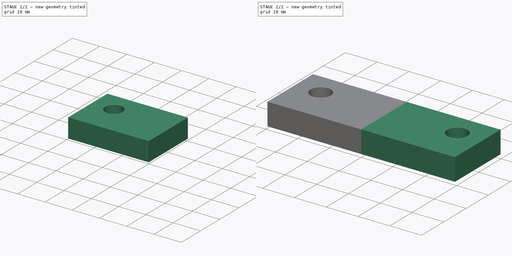
[diagram: build sequence overview — one tinted view per stage of 2, left to right]
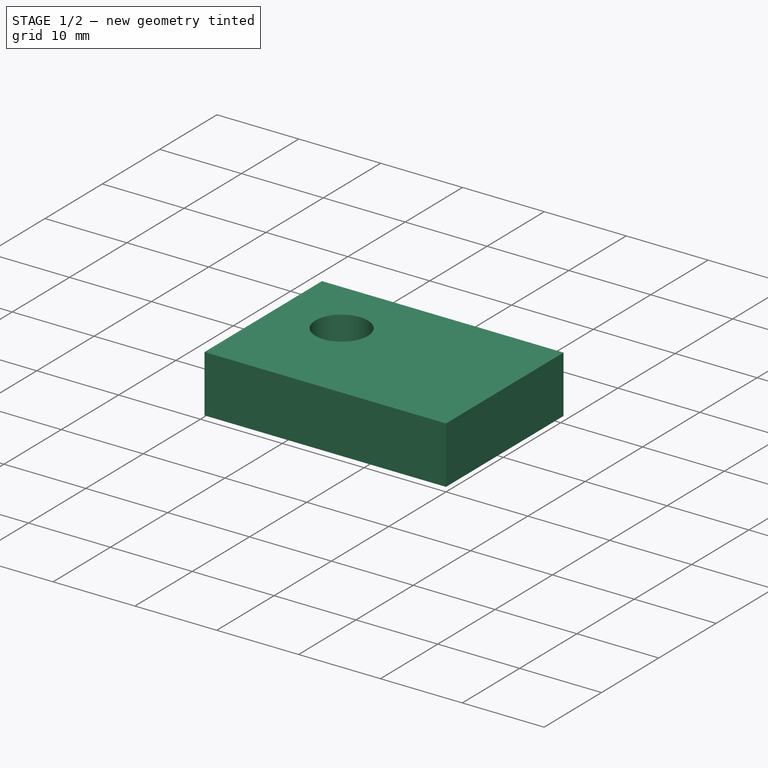
[diagram: stage 1 of 2 — iso view after this stage's code; geometry added in this stage tinted green]
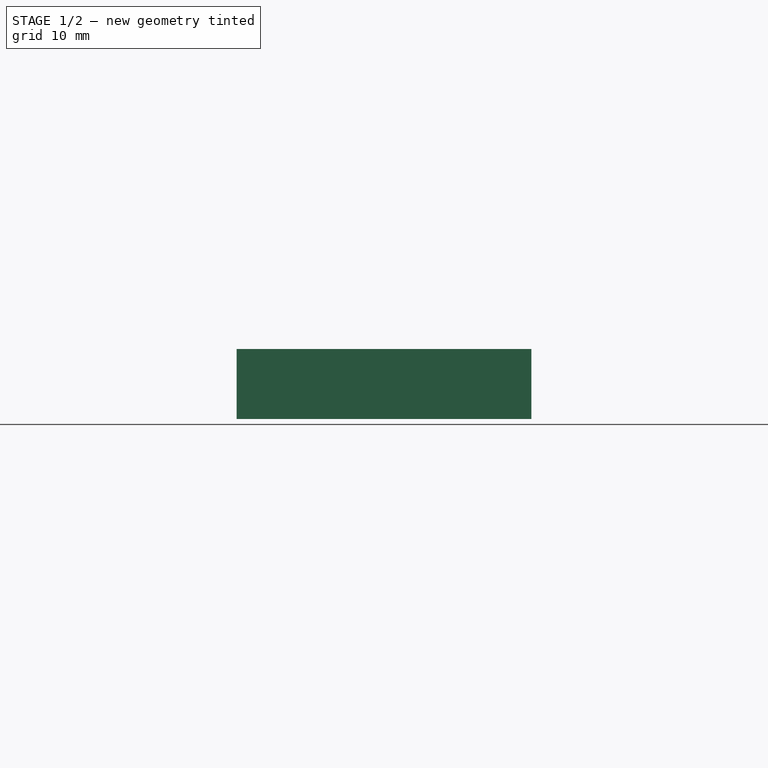
[diagram: stage 1 of 2 — front view after this stage's code; geometry added in this stage tinted green]
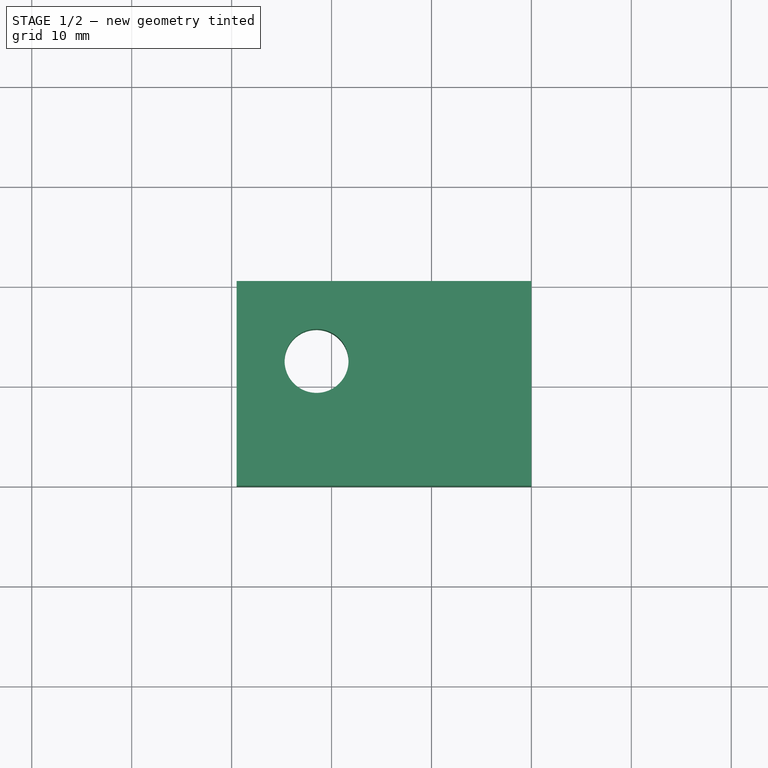
[diagram: stage 1 of 2 — top view after this stage's code; geometry added in this stage tinted green]
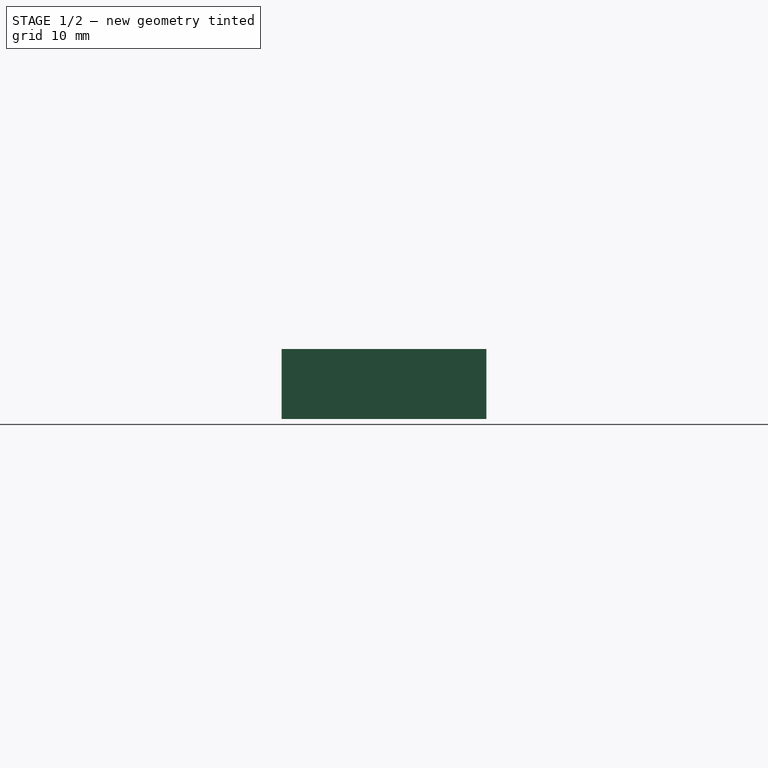
[diagram: stage 1 of 2 — right view after this stage's code; geometry added in this stage tinted green]
FCSTD DOCUMENT  (FreeCAD 0.19R24291 (Git))
Label: Упор
License: All rights reserved
LicenseURL: http://en.wikipedia.org/wiki/All_rights_reserved
objects: Sketcher::SketchObject×1, PartDesign::Pad×1, PartDesign::Mirrored×1, PartDesign::Body×1
note: 5 computed .brp shape members not serialized (recipe doc carries the construction recipe); baked Part::Feature solids carry a one-line shape summary decoded from their .brp

FEATURE [Sketcher::SketchObject] Sketch
  FullyConstrained = true
  MapMode = 5
  Support = -> [XY_Plane]
  sketch-geometry (5):
    g0: Circle CenterX=-21.5 CenterY=12.5 CenterZ=0 NormalX=0 NormalY=0 NormalZ=1 AngleXU=0 Radius=3.2
    g1: LineSegment StartX=0 StartY=0 StartZ=0 EndX=-29.5 EndY=0 EndZ=0
    g2: LineSegment StartX=-29.5 StartY=0 StartZ=0 EndX=-29.5 EndY=20.5 EndZ=0
    g3: LineSegment StartX=-29.5 StartY=20.5 StartZ=0 EndX=0 EndY=20.5 EndZ=0
    g4: LineSegment StartX=0 StartY=20.5 StartZ=0 EndX=0 EndY=0 EndZ=0
  constraints (14):
    c: Distance(g0,g-1) = 12.5
    c: Diameter(g0) = 6.4
    c: Distance(g0,g-2) = 21.5
    c: Coincident(g1,g2)
    c: Coincident(g2,g3)
    c: Coincident(g3,g4)
    c: Coincident(g4,g1)
    c: Horizontal(g1)
    c: Horizontal(g3)
    c: Vertical(g2)
    c: Vertical(g4)
    c: Coincident(g1,g-1)
    c: Distance(g0,g2) = 8
    c: Distance(g0,g3) = 8
FEATURE [PartDesign::Pad] Pad
  Direction = (1,1,1)
  Length = 7
  Length2 = 100
  Profile = -> Sketch
  Type = 0
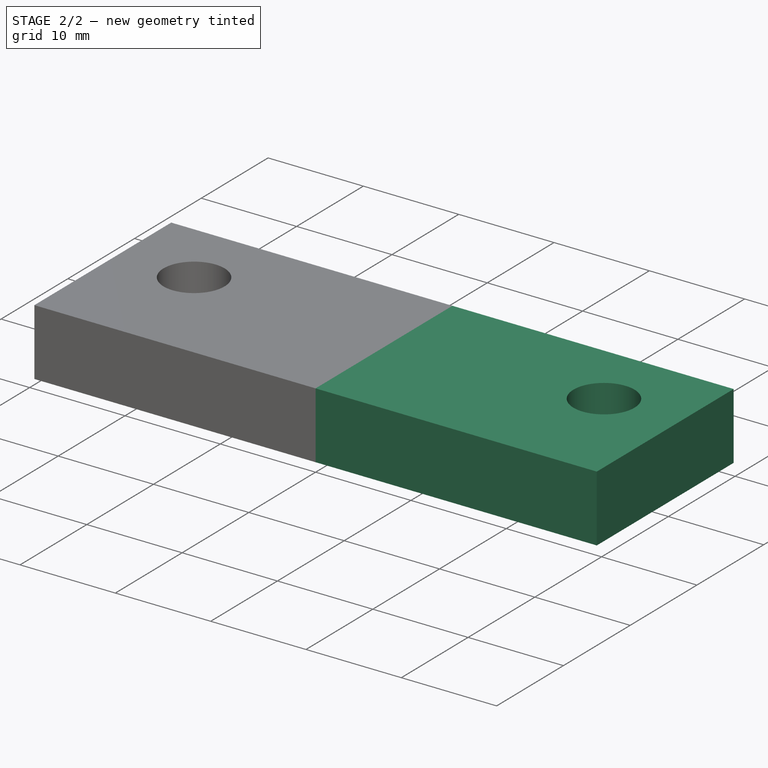
[diagram: stage 2 of 2 — iso view after this stage's code; geometry added in this stage tinted green]
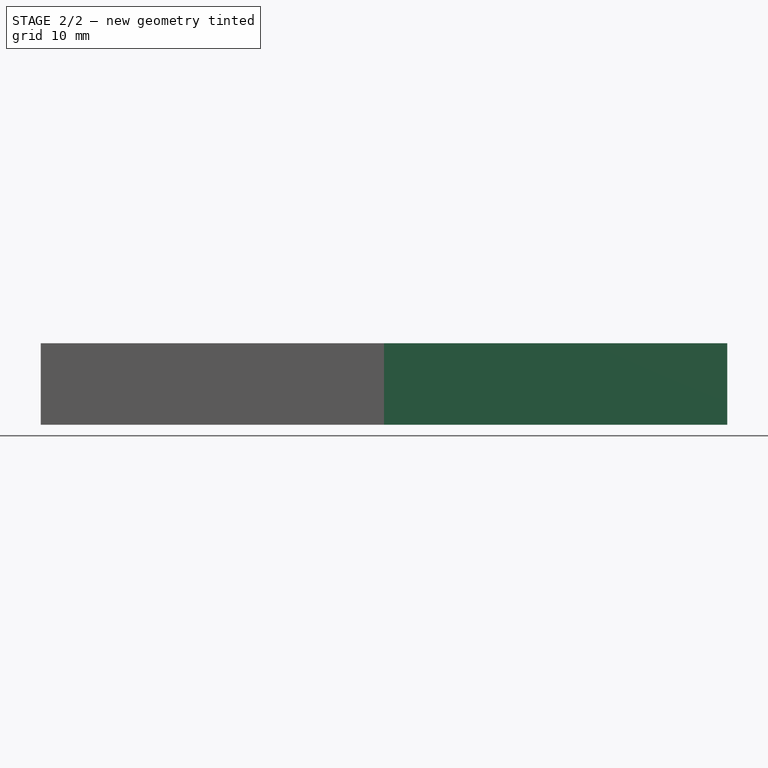
[diagram: stage 2 of 2 — front view after this stage's code; geometry added in this stage tinted green]
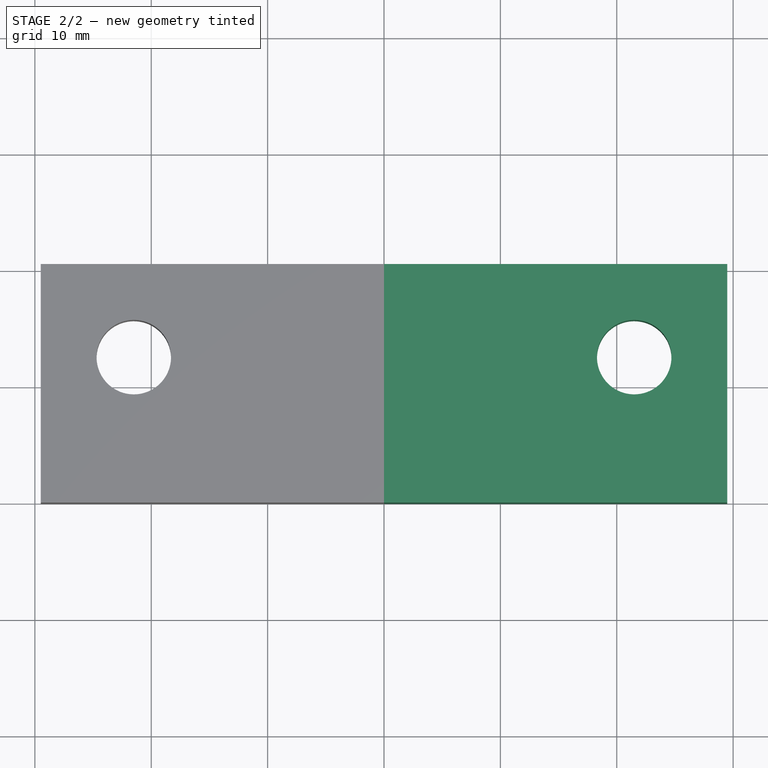
[diagram: stage 2 of 2 — top view after this stage's code; geometry added in this stage tinted green]
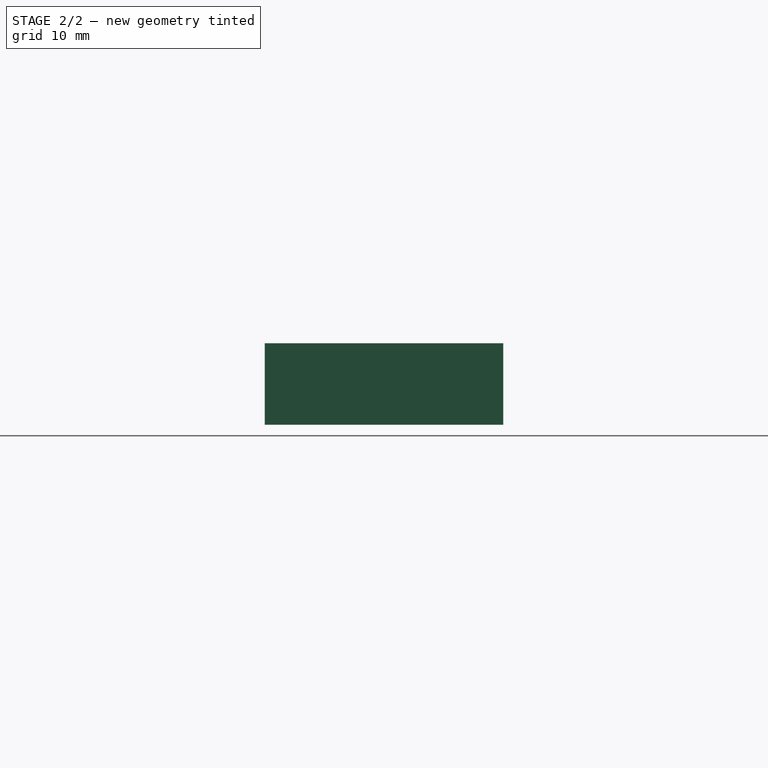
[diagram: stage 2 of 2 — right view after this stage's code; geometry added in this stage tinted green]
FEATURE [PartDesign::Mirrored] Mirrored
  BaseFeature = -> Pad
  MirrorPlane = -> Sketch [V_Axis]
  Originals = -> [Pad]
FEATURE [PartDesign::Body] Body
  Group = -> [Sketch,Pad,Mirrored]
  Origin = -> Origin
  Tip = -> Mirrored
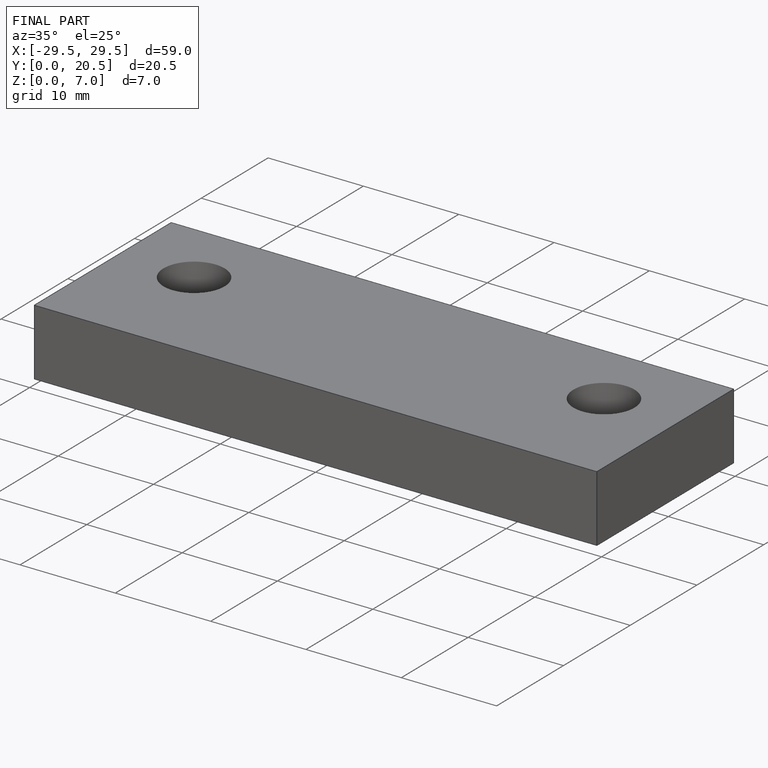
[diagram: finished part — iso view with bounding-box wireframe]
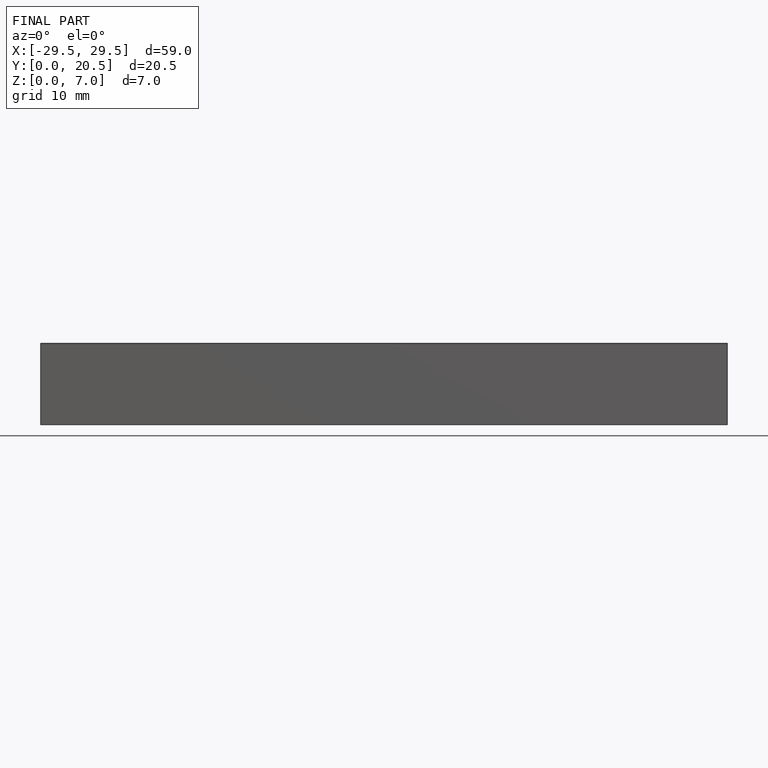
[diagram: finished part — front view with bounding-box wireframe]
